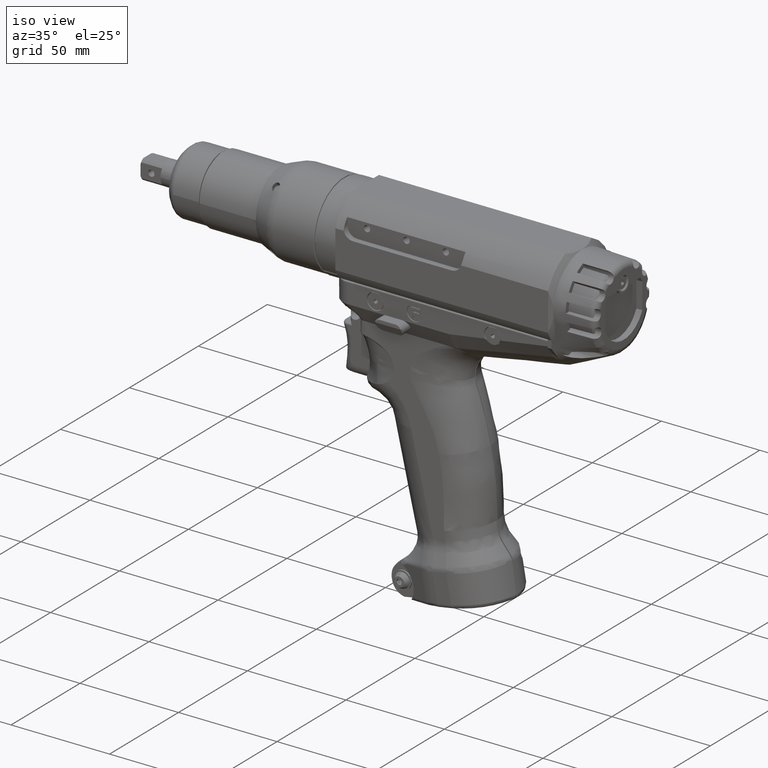
[diagram: clean part render]
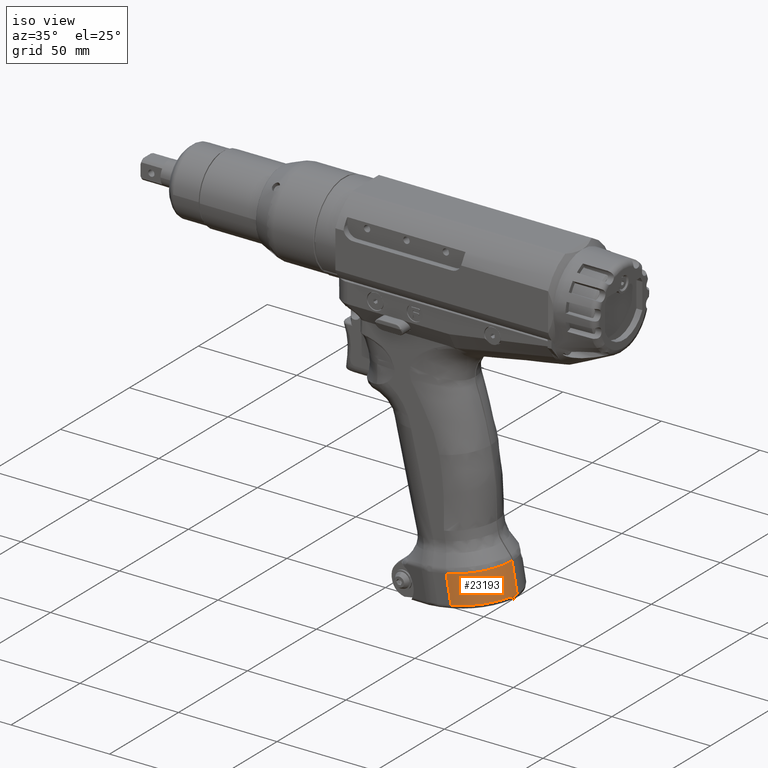
[diagram: same view with one face highlighted and labeled with its STEP entity id]
A machine part, iso view. The second image highlights one B-rep face of the part: STEP entity #23193.
In plain terms, the highlighted cylindrical surface (partial cylindrical patch) has radius 20 mm, axis along (0.1736, 0, -0.9848).
Its self-contained STEP definition (entity closure, byte-faithful):
#637=CYLINDRICAL_SURFACE('',#25154,20.0000000000148);
#1865=LINE('',#56861,#3221);
#1866=LINE('',#56863,#3222);
#1867=LINE('',#56866,#3223);
#3221=VECTOR('',#29806,10.);
#3222=VECTOR('',#29807,10.);
#3223=VECTOR('',#29810,10.);
#4962=FACE_OUTER_BOUND('',#6290,.T.);
#6290=EDGE_LOOP('',(#19077,#19078,#19079,#19080,#19081,#19082));
#7417=CIRCLE('',#25153,20.0196581365393);
#7418=CIRCLE('',#25155,20.000003862037);
#8212=B_SPLINE_CURVE_WITH_KNOTS('',3,(#56853,#56854,#56855,#56856,#56857,
#56858,#56859),.UNSPECIFIED.,.F.,.F.,(4,1,1,1,4),(-6.22190471991814E-9,
7.11157267544012,14.2193277826116,21.3205622149425,26.5479907113652),
 .UNSPECIFIED.);
#10216=VERTEX_POINT('',#56821);
#10218=VERTEX_POINT('',#56837);
#10219=VERTEX_POINT('',#56852);
#10220=VERTEX_POINT('',#56860);
#10221=VERTEX_POINT('',#56862);
#10222=VERTEX_POINT('',#56864);
#13293=EDGE_CURVE('',#10216,#10218,#7417,.T.);
#13294=EDGE_CURVE('',#10219,#10216,#8212,.T.);
#13295=EDGE_CURVE('',#10218,#10220,#1865,.T.);
#13296=EDGE_CURVE('',#10220,#10221,#1866,.T.);
#13297=EDGE_CURVE('',#10221,#10222,#7418,.T.);
#13298=EDGE_CURVE('',#10222,#10219,#1867,.T.);
#19077=ORIENTED_EDGE('',*,*,#13294,.T.);
#19078=ORIENTED_EDGE('',*,*,#13293,.T.);
#19079=ORIENTED_EDGE('',*,*,#13295,.T.);
#19080=ORIENTED_EDGE('',*,*,#13296,.T.);
#19081=ORIENTED_EDGE('',*,*,#13297,.T.);
#19082=ORIENTED_EDGE('',*,*,#13298,.T.);
#23193=ADVANCED_FACE('',(#4962),#637,.T.);
#25153=AXIS2_PLACEMENT_3D('',#56850,#29802,#29803);
#25154=AXIS2_PLACEMENT_3D('',#56851,#29804,#29805);
#25155=AXIS2_PLACEMENT_3D('',#56865,#29808,#29809);
#29802=DIRECTION('center_axis',(-0.173463118997827,0.0314069828657716,0.984339447434072));
#29803=DIRECTION('ref_axis',(0.984632810809168,-0.0149882941899131,0.173993042721004));
#29804=DIRECTION('center_axis',(0.173648177666999,1.00907833878518E-13,
-0.984807753012196));
#29805=DIRECTION('ref_axis',(0.690237440299691,-0.713273835487286,0.121707483819961));
#29806=DIRECTION('',(-0.173648213364293,-2.41621593097588E-6,0.984807746714835));
#29807=DIRECTION('',(-0.173648177571529,6.45824982895435E-9,0.98480775302903));
#29808=DIRECTION('center_axis',(0.173648187182093,9.51811043032716E-9,-0.984807751334428));
#29809=DIRECTION('ref_axis',(-3.55479047595876E-8,-0.999999999999999,-1.59329978097926E-8));
#29810=DIRECTION('',(0.173648177666996,7.42811671450538E-15,-0.984807753012196));
#56821=CARTESIAN_POINT('',(166.999909650759,-1.92346855652348,-145.886971958664));
#56837=CARTESIAN_POINT('',(167.097853393134,-0.299999769774141,-145.921511496122));
#56850=CARTESIAN_POINT('Origin',(147.385841130753,6.07568700926171E-5,-149.404792729671));
#56851=CARTESIAN_POINT('Origin',(144.841007497986,1.44469337883139E-11,
-134.859117729239));
#56852=CARTESIAN_POINT('',(147.296401184243,-19.9999999999981,-148.784347302091));
#56853=CARTESIAN_POINT('Ctrl Pts',(147.296401184243,-19.9999999999981,-148.784347302091));
#56854=CARTESIAN_POINT('Ctrl Pts',(149.89026559291,-20.0015966372459,-148.326928068213));
#56855=CARTESIAN_POINT('Ctrl Pts',(155.081314823237,-18.9460739121551,-147.445291487713));
#56856=CARTESIAN_POINT('Ctrl Pts',(161.683409932175,-14.4510610482145,-146.424615722302));
#56857=CARTESIAN_POINT('Ctrl Pts',(165.697912197077,-8.32826738068609,-145.912150623056));
#56858=CARTESIAN_POINT('Ctrl Pts',(166.8057400255,-3.84935249370099,-145.859748675292));
#56859=CARTESIAN_POINT('Ctrl Pts',(166.999909650844,-1.92346855568066,-145.886971958676));
#56860=CARTESIAN_POINT('',(167.087574973184,-0.299999911880208,-145.863219692199));
#56861=CARTESIAN_POINT('',(167.097853393173,-0.299999768861851,-145.92151149626));
#56862=CARTESIAN_POINT('',(164.534951047996,-0.299999945539844,-131.386543775762));
#56863=CARTESIAN_POINT('',(167.087574973184,-0.299999911880208,-145.863219692199));
#56864=CARTESIAN_POINT('',(144.841007504408,-19.9999999999982,-134.859117765643));
#56865=CARTESIAN_POINT('Origin',(144.841008215366,3.86203880537298E-6,-134.859117446983));
#56866=CARTESIAN_POINT('',(144.841007504408,-19.9999999999982,-134.859117765643));